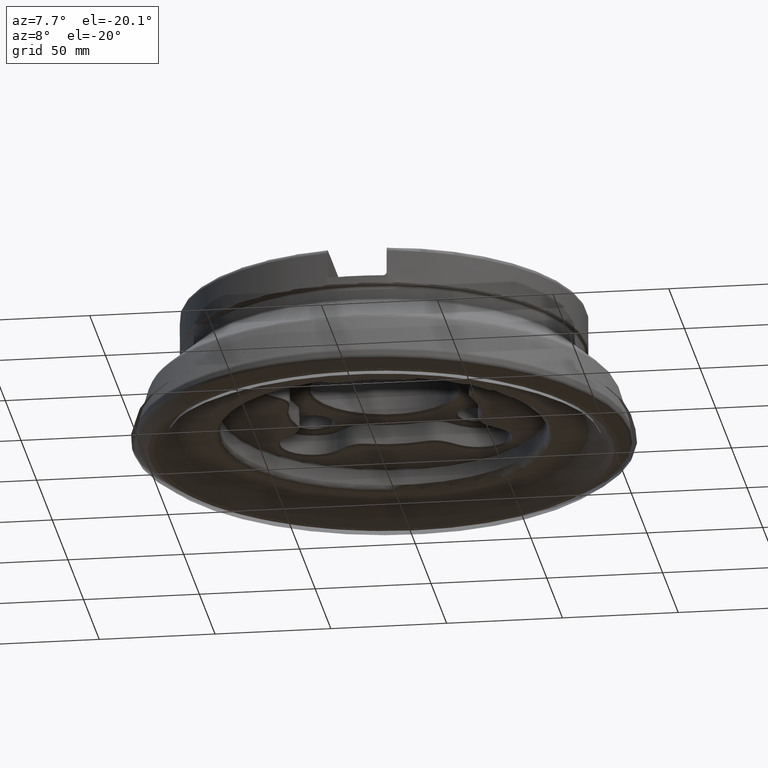
[diagram: clean part render]
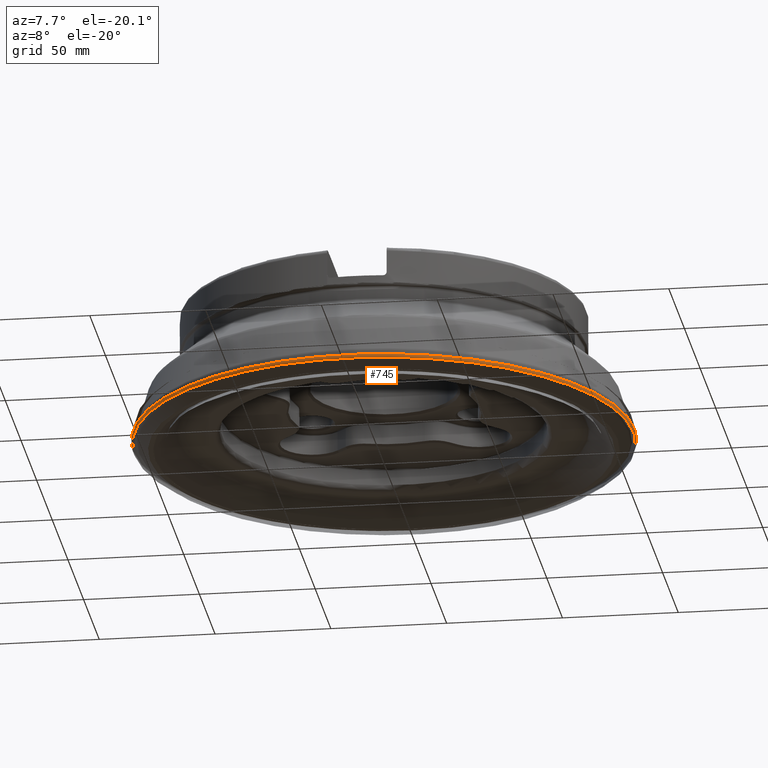
[diagram: same view with one face highlighted and labeled with its STEP entity id]
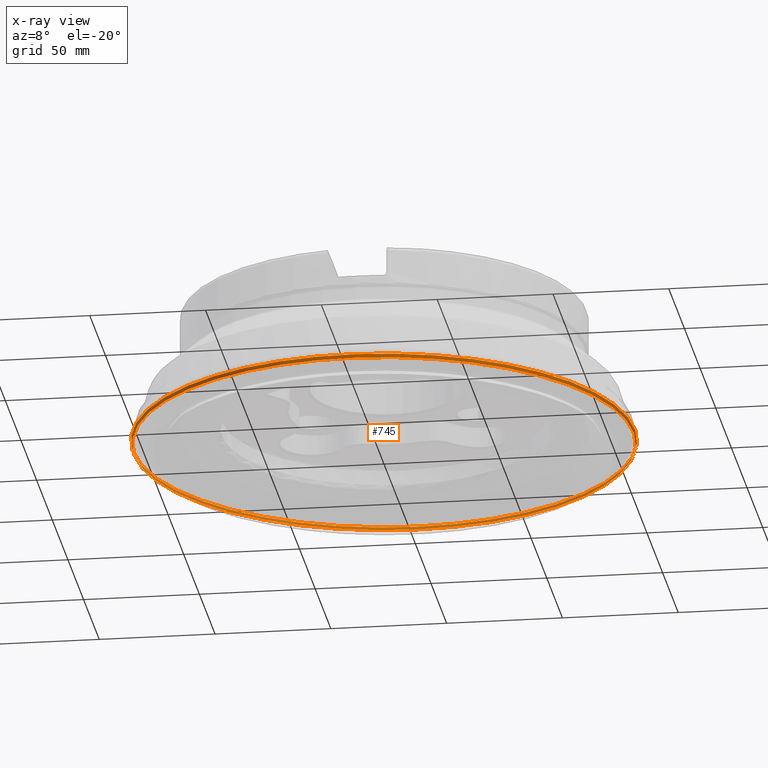
[diagram: x-ray of the same camera — body ghosted, the highlighted face saturated]
A machine part, auxiliary view. The second image highlights one B-rep face of the part: STEP entity #745.
The next image is the same camera in x-ray: the body ghosted, the highlighted face saturated — about 0% of this face is hidden behind the body in this view.
In plain terms, the highlighted face is a SurfaceOfRevolution surface.
Its self-contained STEP definition (entity closure, byte-faithful):
#134=SURFACE_OF_REVOLUTION('',#2613,#164);
#164=AXIS1_PLACEMENT('',#5005,#3692);
#745=ADVANCED_FACE('',(#926,#927),#134,.F.);
#926=FACE_BOUND('',#1170,.T.);
#927=FACE_BOUND('',#1171,.T.);
#1170=EDGE_LOOP('',(#1804));
#1171=EDGE_LOOP('',(#1805));
#1804=ORIENTED_EDGE('',*,*,#2344,.T.);
#1805=ORIENTED_EDGE('',*,*,#2345,.F.);
#2027=VERTEX_POINT('',#4992);
#2028=VERTEX_POINT('',#4999);
#2344=EDGE_CURVE('',#2027,#2027,#2521,.T.);
#2345=EDGE_CURVE('',#2028,#2028,#2522,.T.);
#2521=CIRCLE('',#2928,107.759916489772);
#2522=CIRCLE('',#2929,108.273841234172);
#2613=B_SPLINE_CURVE_WITH_KNOTS('',3,(#5000,#5001,#5002,#5003,#5004),
 .UNSPECIFIED.,.F.,.F.,(4,1,4),(0.,0.500000000049007,1.),.UNSPECIFIED.);
#2928=AXIS2_PLACEMENT_3D('',#4991,#3687,#3688);
#2929=AXIS2_PLACEMENT_3D('',#4998,#3690,#3691);
#3687=DIRECTION('',(-1.17145536458252E-15,0.,-1.));
#3688=DIRECTION('',(-1.,0.,1.17515694027404E-15));
#3690=DIRECTION('',(-1.17145536458252E-15,0.,-1.));
#3691=DIRECTION('',(-1.,0.,1.16957902576324E-15));
#3692=DIRECTION('',(-1.17145536458252E-15,0.,-1.));
#4991=CARTESIAN_POINT('',(5.28130693177956E-15,0.,4.50832963120339));
#4992=CARTESIAN_POINT('',(-107.759916489772,0.,4.50832963120351));
#4998=CARTESIAN_POINT('',(6.96871939156927E-15,0.,5.94877073617972));
#4999=CARTESIAN_POINT('',(-108.273841234172,0.,5.94877073617985));
#5000=CARTESIAN_POINT('',(-16.8573550100907,-106.953514564349,5.94877073617974));
#5001=CARTESIAN_POINT('',(-16.865802883375,-106.887648105343,5.69987082635374));
#5002=CARTESIAN_POINT('',(-16.8410928457215,-106.746318587462,5.20405680713723));
#5003=CARTESIAN_POINT('',(-16.7302548246573,-106.560608066139,4.73539627366165));
#5004=CARTESIAN_POINT('',(-16.654914214854,-106.465080821735,4.50832963120341));
#5005=CARTESIAN_POINT('',(0.,0.,0.));